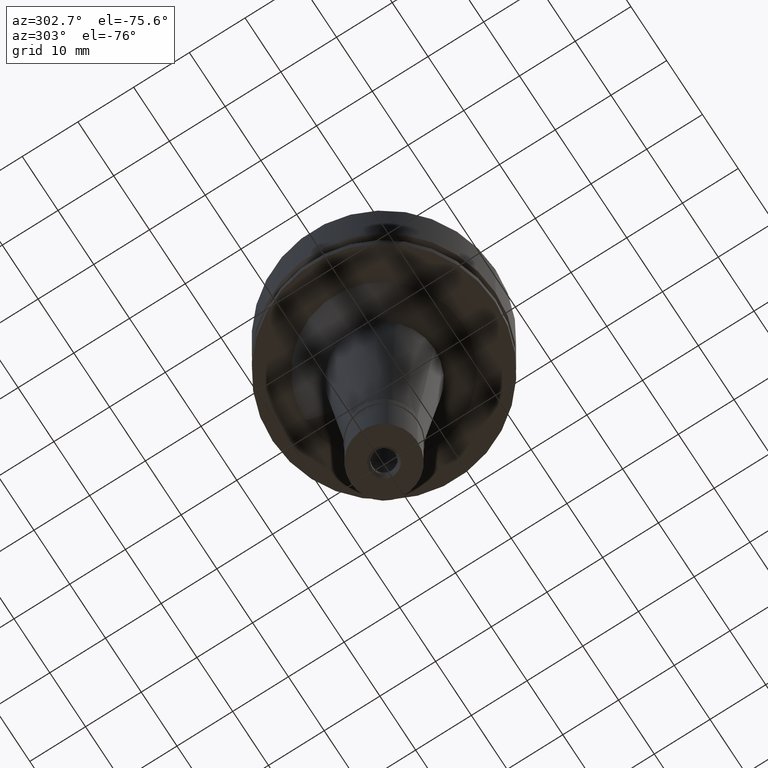
[diagram: clean part render]
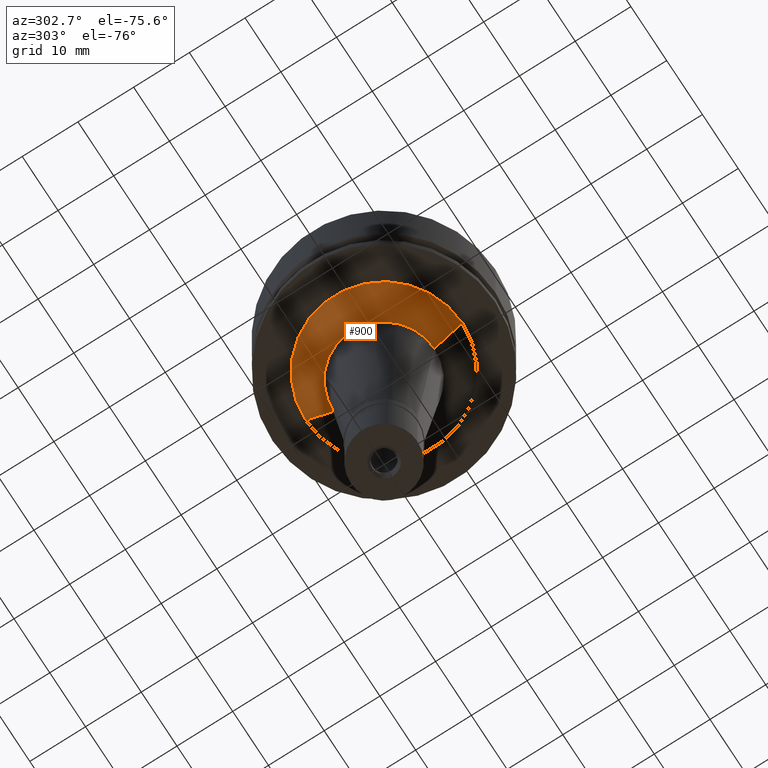
[diagram: same view with one face highlighted and labeled with its STEP entity id]
A machine part, auxiliary view. The second image highlights one B-rep face of the part: STEP entity #900.
In plain terms, the highlighted conical surface has half-angle 45 deg.
Its self-contained STEP definition (entity closure, byte-faithful):
#157 = ORIENTED_EDGE ( 'NONE', *, *, #1912, .F. ) ;
#158 = CARTESIAN_POINT ( 'NONE',  ( 0.0000000000000000000, 0.0000000000000000000, -20.00000000000000000 ) ) ;
#214 = DIRECTION ( 'NONE',  ( 0.0000000000000000000, 0.0000000000000000000, 1.000000000000000000 ) ) ;
#284 = AXIS2_PLACEMENT_3D ( 'NONE', #327, #1797, #1007 ) ;
#307 = EDGE_CURVE ( 'NONE', #1806, #2502, #2684, .T. ) ;
#327 = CARTESIAN_POINT ( 'NONE',  ( 0.0000000000000000000, 0.0000000000000000000, -25.00000000000000000 ) ) ;
#332 = AXIS2_PLACEMENT_3D ( 'NONE', #158, #435, #2120 ) ;
#402 = LINE ( 'NONE', #1279, #756 ) ;
#433 = CARTESIAN_POINT ( 'NONE',  ( 0.0000000000000000000, 0.0000000000000000000, -22.50000000000000000 ) ) ;
#435 = DIRECTION ( 'NONE',  ( 0.0000000000000000000, 0.0000000000000000000, -1.000000000000000000 ) ) ;
#438 = VERTEX_POINT ( 'NONE', #2050 ) ;
#583 = DIRECTION ( 'NONE',  ( 0.0000000000000000000, -0.7071067811864976127, -0.7071067811865975328 ) ) ;
#599 = CARTESIAN_POINT ( 'NONE',  ( 0.0000000000000000000, -14.04460549070000219, -20.00000000000000000 ) ) ;
#700 = EDGE_CURVE ( 'NONE', #2502, #438, #779, .T. ) ;
#735 = EDGE_CURVE ( 'NONE', #823, #438, #2687, .T. ) ;
#756 = VECTOR ( 'NONE', #2517, 1000.000000000000114 ) ;
#779 = LINE ( 'NONE', #1624, #2215 ) ;
#823 = VERTEX_POINT ( 'NONE', #2671 ) ;
#900 = ADVANCED_FACE ( 'NONE', ( #1656 ), #1114, .T. ) ;
#1007 = DIRECTION ( 'NONE',  ( 0.0000000000000000000, -1.000000000000000000, 0.0000000000000000000 ) ) ;
#1064 = DIRECTION ( 'NONE',  ( 0.0000000000000000000, 1.000000000000000000, 0.0000000000000000000 ) ) ;
#1114 = CONICAL_SURFACE ( 'NONE', #2621, 11.54460549070000042, 0.7853981633972997312 ) ;
#1279 = CARTESIAN_POINT ( 'NONE',  ( 0.0000000000000000000, -14.04460549070000219, -20.00000000000000000 ) ) ;
#1337 = CARTESIAN_POINT ( 'NONE',  ( 0.0000000000000000000, 14.04460549070000219, -20.00000000000000000 ) ) ;
#1456 = EDGE_LOOP ( 'NONE', ( #2405, #157, #2083, #2447 ) ) ;
#1624 = CARTESIAN_POINT ( 'NONE',  ( 0.0000000000000000000, 14.04460549070000219, -20.00000000000000000 ) ) ;
#1656 = FACE_OUTER_BOUND ( 'NONE', #1456, .T. ) ;
#1797 = DIRECTION ( 'NONE',  ( 0.0000000000000000000, 0.0000000000000000000, -1.000000000000000000 ) ) ;
#1806 = VERTEX_POINT ( 'NONE', #599 ) ;
#1912 = EDGE_CURVE ( 'NONE', #1806, #823, #402, .T. ) ;
#2050 = CARTESIAN_POINT ( 'NONE',  ( 0.0000000000000000000, 9.044605490701998818, -25.00000000000000000 ) ) ;
#2083 = ORIENTED_EDGE ( 'NONE', *, *, #307, .T. ) ;
#2120 = DIRECTION ( 'NONE',  ( 0.0000000000000000000, -1.000000000000000000, 0.0000000000000000000 ) ) ;
#2215 = VECTOR ( 'NONE', #583, 1000.000000000000114 ) ;
#2405 = ORIENTED_EDGE ( 'NONE', *, *, #735, .F. ) ;
#2447 = ORIENTED_EDGE ( 'NONE', *, *, #700, .T. ) ;
#2502 = VERTEX_POINT ( 'NONE', #1337 ) ;
#2517 = DIRECTION ( 'NONE',  ( 0.0000000000000000000, 0.7071067811864976127, -0.7071067811865975328 ) ) ;
#2621 = AXIS2_PLACEMENT_3D ( 'NONE', #433, #214, #1064 ) ;
#2671 = CARTESIAN_POINT ( 'NONE',  ( 0.0000000000000000000, -9.044605490701998818, -25.00000000000000000 ) ) ;
#2684 = CIRCLE ( 'NONE', #332, 14.04460549070000219 ) ;
#2687 = CIRCLE ( 'NONE', #284, 9.044605490701000505 ) ;